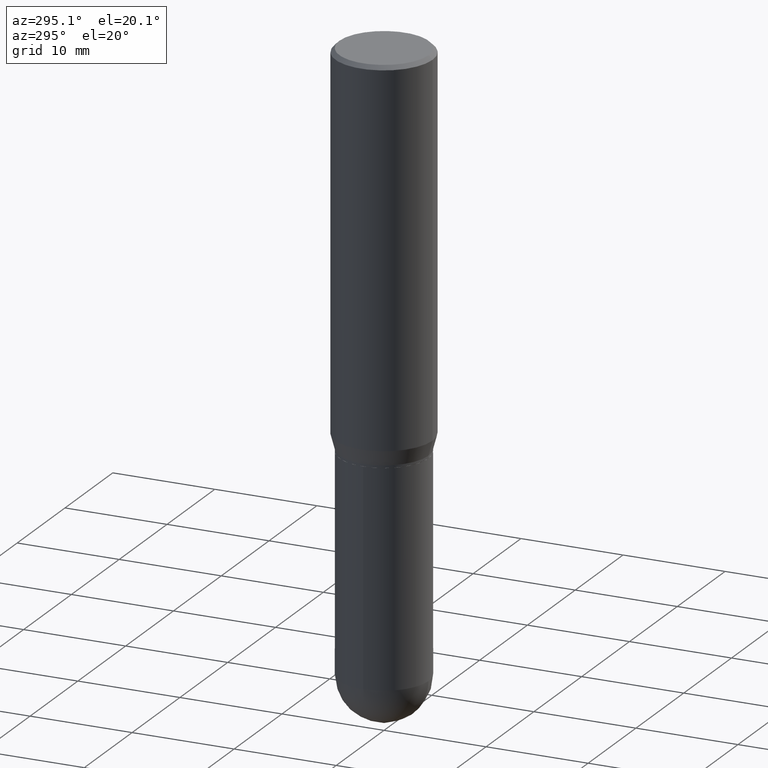
[diagram: clean part render]
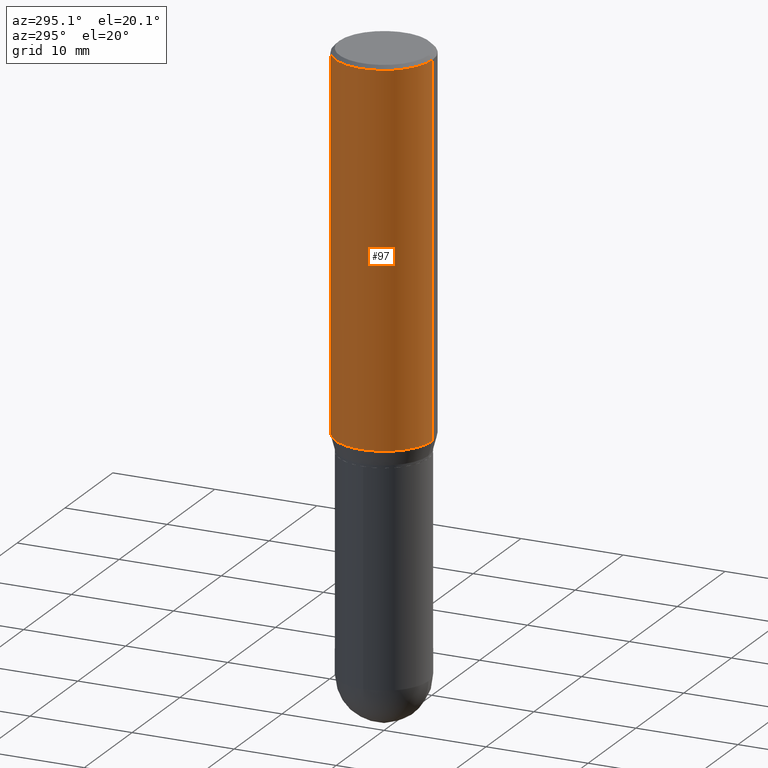
[diagram: same view with one face highlighted and labeled with its STEP entity id]
A machine part, auxiliary view. The second image highlights one B-rep face of the part: STEP entity #97.
In plain terms, the highlighted cylindrical surface (partial cylindrical patch) has radius 4.7625 mm, axis along (-0, 0, 1).
Its self-contained STEP definition (entity closure, byte-faithful):
#2 = EDGE_CURVE ( 'NONE', #310, #448, #352, .T. ) ;
#37 = AXIS2_PLACEMENT_3D ( 'NONE', #57, #378, #258 ) ;
#42 = VERTEX_POINT ( 'NONE', #120 ) ;
#45 = AXIS2_PLACEMENT_3D ( 'NONE', #503, #184, #143 ) ;
#57 = CARTESIAN_POINT ( 'NONE',  ( 0.000000000000000000, 0.000000000000000000, 0.000000000000000000 ) ) ;
#78 = ORIENTED_EDGE ( 'NONE', *, *, #434, .F. ) ;
#80 = CARTESIAN_POINT ( 'NONE',  ( -1.309305502066174614E-15, -0.1875000000000000833, -0.01499999999999933678 ) ) ;
#83 = VECTOR ( 'NONE', #171, 39.37007874015748143 ) ;
#96 = CYLINDRICAL_SURFACE ( 'NONE', #37, 0.1875000000000000278 ) ;
#97 = ADVANCED_FACE ( 'NONE', ( #222 ), #96, .T. ) ;
#120 = CARTESIAN_POINT ( 'NONE',  ( 1.332267629550222953E-15, 0.1874999999999999445, -0.01500000000000064650 ) ) ;
#124 = CARTESIAN_POINT ( 'NONE',  ( 1.332267629550187651E-15, 0.1875000000000000278, -6.547499353462331727E-16 ) ) ;
#139 = ORIENTED_EDGE ( 'NONE', *, *, #162, .F. ) ;
#142 = ORIENTED_EDGE ( 'NONE', *, *, #2, .T. ) ;
#143 = DIRECTION ( 'NONE',  ( -6.982962677686265922E-15, -1.000000000000000000, 3.494488891895536035E-15 ) ) ;
#146 = ORIENTED_EDGE ( 'NONE', *, *, #166, .T. ) ;
#162 = EDGE_CURVE ( 'NONE', #310, #42, #488, .T. ) ;
#166 = EDGE_CURVE ( 'NONE', #448, #233, #402, .T. ) ;
#171 = DIRECTION ( 'NONE',  ( -2.445106867821650572E-29, 3.491999655179910386E-15, 1.000000000000000000 ) ) ;
#184 = DIRECTION ( 'NONE',  ( -2.445106867821650572E-29, 3.491999655179909992E-15, 1.000000000000000000 ) ) ;
#188 = DIRECTION ( 'NONE',  ( -2.445106867821650572E-29, 3.491999655179909992E-15, 1.000000000000000000 ) ) ;
#222 = FACE_OUTER_BOUND ( 'NONE', #303, .T. ) ;
#233 = VERTEX_POINT ( 'NONE', #80 ) ;
#240 = AXIS2_PLACEMENT_3D ( 'NONE', #408, #188, #460 ) ;
#258 = DIRECTION ( 'NONE',  ( -6.982962677686265922E-15, -1.000000000000000000, 3.491999655179909597E-15 ) ) ;
#303 = EDGE_LOOP ( 'NONE', ( #139, #142, #146, #78 ) ) ;
#310 = VERTEX_POINT ( 'NONE', #333 ) ;
#333 = CARTESIAN_POINT ( 'NONE',  ( 1.332267629550222558E-15, 0.1874999999999950318, -1.431780007401926014 ) ) ;
#352 = CIRCLE ( 'NONE', #240, 0.1875000000000000278 ) ;
#365 = CARTESIAN_POINT ( 'NONE',  ( -1.309305502066140101E-15, -0.1875000000000049960, -1.431780007401924903 ) ) ;
#372 = CARTESIAN_POINT ( 'NONE',  ( -1.309305502066175008E-15, -0.1875000000000000278, 6.547499353462331727E-16 ) ) ;
#378 = DIRECTION ( 'NONE',  ( -2.445106867821650572E-29, 3.491999655179909992E-15, 1.000000000000000000 ) ) ;
#402 = LINE ( 'NONE', #372, #83 ) ;
#403 = DIRECTION ( 'NONE',  ( -2.445106867821650572E-29, 3.491999655179910386E-15, 1.000000000000000000 ) ) ;
#408 = CARTESIAN_POINT ( 'NONE',  ( 3.500855129308181168E-29, -4.999775292141012103E-15, -1.431780007401925348 ) ) ;
#420 = VECTOR ( 'NONE', #403, 39.37007874015748143 ) ;
#434 = EDGE_CURVE ( 'NONE', #42, #233, #486, .T. ) ;
#448 = VERTEX_POINT ( 'NONE', #365 ) ;
#460 = DIRECTION ( 'NONE',  ( -6.982962677686265922E-15, -1.000000000000000000, 2.913971193241880372E-15 ) ) ;
#486 = CIRCLE ( 'NONE', #45, 0.1875000000000000278 ) ;
#488 = LINE ( 'NONE', #124, #420 ) ;
#503 = CARTESIAN_POINT ( 'NONE',  ( 3.667660301732473984E-31, -5.237999482769862300E-17, -0.01499999999999999077 ) ) ;